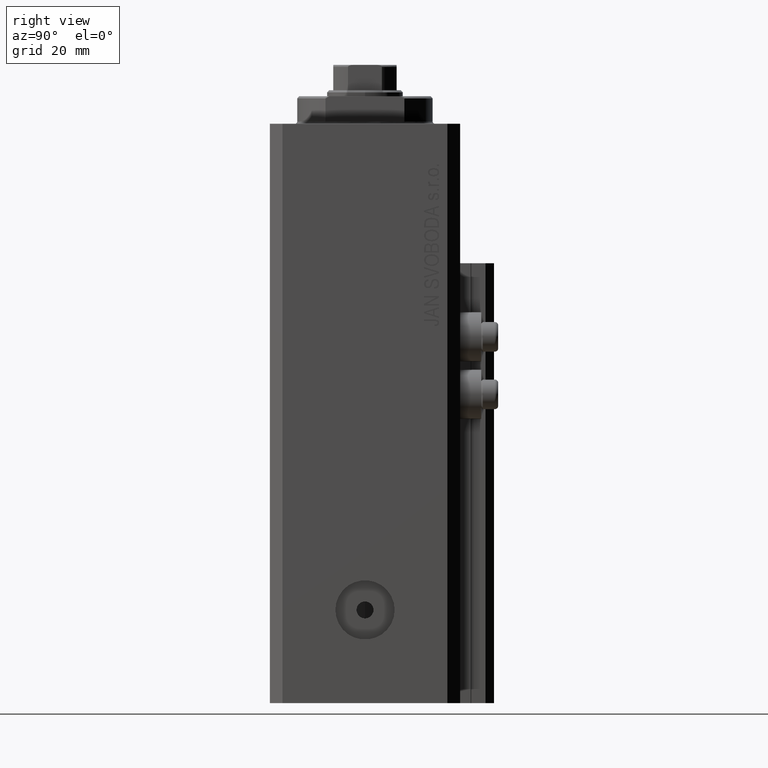
[diagram: clean part render]
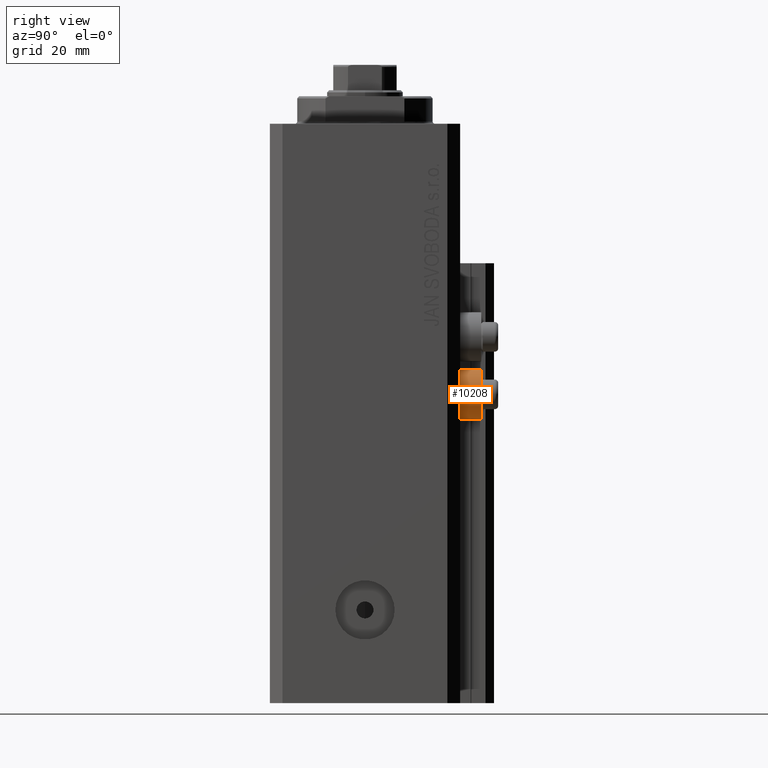
[diagram: same view with one face highlighted and labeled with its STEP entity id]
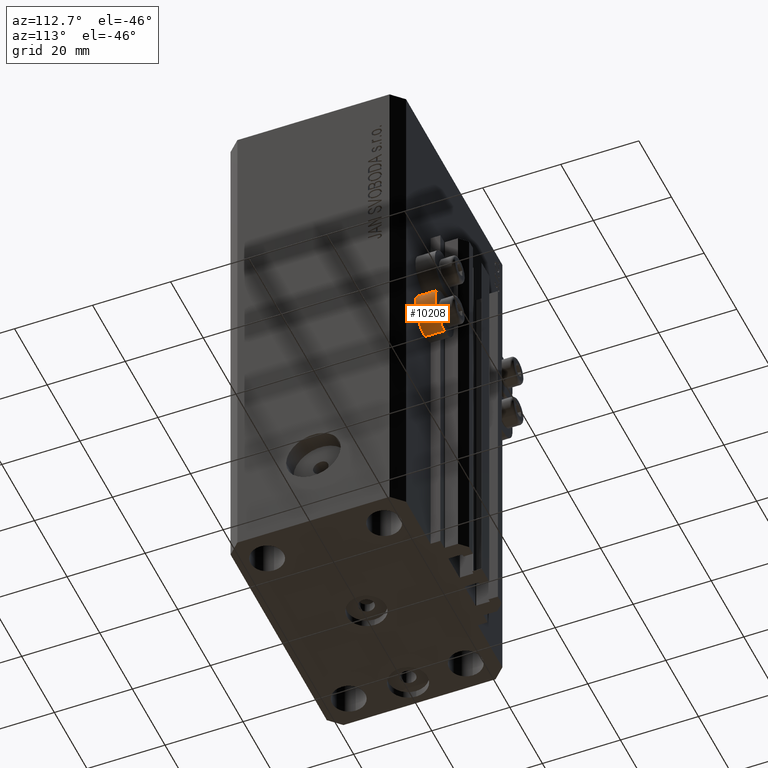
[diagram: same view with one face highlighted and labeled with its STEP entity id]
A machine part, right view. The second image highlights one B-rep face of the part: STEP entity #10208.
A second angle (auxiliary view) of the same face is appended — the face is thin or edge-on in the first view.
In plain terms, the highlighted cylindrical surface (edge-blend (fillet) strip) has radius 5.8 mm, axis along (0, 1, 0).
Its self-contained STEP definition (entity closure, byte-faithful):
#531 = VERTEX_POINT ( 'NONE', #13673 ) ;
#742 = CARTESIAN_POINT ( 'NONE',  ( 18.00000000000000355, 27.49999999996051514, -64.00000000000000000 ) ) ;
#1941 = VERTEX_POINT ( 'NONE', #29355 ) ;
#2612 = CARTESIAN_POINT ( 'NONE',  ( 18.00000000000000355, 27.49999999996051514, -69.79999999999999716 ) ) ;
#2930 = EDGE_LOOP ( 'NONE', ( #40659, #28297, #26490, #22363 ) ) ;
#3049 = CIRCLE ( 'NONE', #32093, 5.799999999999999822 ) ;
#4739 = AXIS2_PLACEMENT_3D ( 'NONE', #35415, #38304, #34942 ) ;
#4857 = EDGE_CURVE ( 'NONE', #531, #1941, #3049, .T. ) ;
#5178 = VERTEX_POINT ( 'NONE', #39918 ) ;
#7684 = DIRECTION ( 'NONE',  ( 0.000000000000000000, 1.000000000000000000, 0.000000000000000000 ) ) ;
#9114 = CYLINDRICAL_SURFACE ( 'NONE', #4739, 5.799999999999999822 ) ;
#10036 = DIRECTION ( 'NONE',  ( 0.000000000000000000, 1.000000000000000000, 0.000000000000000000 ) ) ;
#10184 = LINE ( 'NONE', #24751, #26134 ) ;
#10208 = ADVANCED_FACE ( 'NONE', ( #34705 ), #9114, .T. ) ;
#10568 = EDGE_CURVE ( 'NONE', #531, #5178, #10184, .T. ) ;
#13673 = CARTESIAN_POINT ( 'NONE',  ( 18.00000000000000355, 22.49999999999951328, -58.20000000000000284 ) ) ;
#15214 = VECTOR ( 'NONE', #10036, 1000.000000000000000 ) ;
#21162 = DIRECTION ( 'NONE',  ( 0.000000000000000000, 1.000000000000000000, 0.000000000000000000 ) ) ;
#21619 = VERTEX_POINT ( 'NONE', #30097 ) ;
#21788 = DIRECTION ( 'NONE',  ( 0.000000000000000000, 0.000000000000000000, -1.000000000000000000 ) ) ;
#22363 = ORIENTED_EDGE ( 'NONE', *, *, #45221, .F. ) ;
#24751 = CARTESIAN_POINT ( 'NONE',  ( 18.00000000000000355, 27.49999999996051514, -58.20000000000000284 ) ) ;
#26134 = VECTOR ( 'NONE', #21162, 1000.000000000000000 ) ;
#26490 = ORIENTED_EDGE ( 'NONE', *, *, #43128, .T. ) ;
#26539 = AXIS2_PLACEMENT_3D ( 'NONE', #742, #7684, #33041 ) ;
#28297 = ORIENTED_EDGE ( 'NONE', *, *, #4857, .T. ) ;
#29355 = CARTESIAN_POINT ( 'NONE',  ( 18.00000000000000355, 22.49999999999951328, -69.79999999999999716 ) ) ;
#30097 = CARTESIAN_POINT ( 'NONE',  ( 18.00000000000000355, 27.49999999996051514, -69.79999999999999716 ) ) ;
#32093 = AXIS2_PLACEMENT_3D ( 'NONE', #39977, #37087, #21788 ) ;
#33041 = DIRECTION ( 'NONE',  ( 0.000000000000000000, 0.000000000000000000, -1.000000000000000000 ) ) ;
#34705 = FACE_OUTER_BOUND ( 'NONE', #2930, .T. ) ;
#34942 = DIRECTION ( 'NONE',  ( 0.000000000000000000, 0.000000000000000000, -1.000000000000000000 ) ) ;
#35415 = CARTESIAN_POINT ( 'NONE',  ( 18.00000000000000355, 27.49999999996051514, -64.00000000000000000 ) ) ;
#35618 = LINE ( 'NONE', #2612, #15214 ) ;
#37087 = DIRECTION ( 'NONE',  ( 0.000000000000000000, 1.000000000000000000, 0.000000000000000000 ) ) ;
#38304 = DIRECTION ( 'NONE',  ( 0.000000000000000000, 1.000000000000000000, 0.000000000000000000 ) ) ;
#39918 = CARTESIAN_POINT ( 'NONE',  ( 18.00000000000000355, 27.49999999996051514, -58.20000000000000284 ) ) ;
#39977 = CARTESIAN_POINT ( 'NONE',  ( 18.00000000000000355, 22.49999999999951328, -64.00000000000000000 ) ) ;
#40659 = ORIENTED_EDGE ( 'NONE', *, *, #10568, .F. ) ;
#43128 = EDGE_CURVE ( 'NONE', #1941, #21619, #35618, .T. ) ;
#43345 = CIRCLE ( 'NONE', #26539, 5.799999999999999822 ) ;
#45221 = EDGE_CURVE ( 'NONE', #5178, #21619, #43345, .T. ) ;